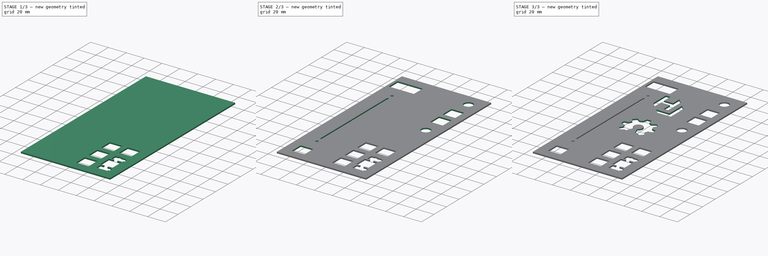
[diagram: build sequence overview — one tinted view per stage of 3, left to right]
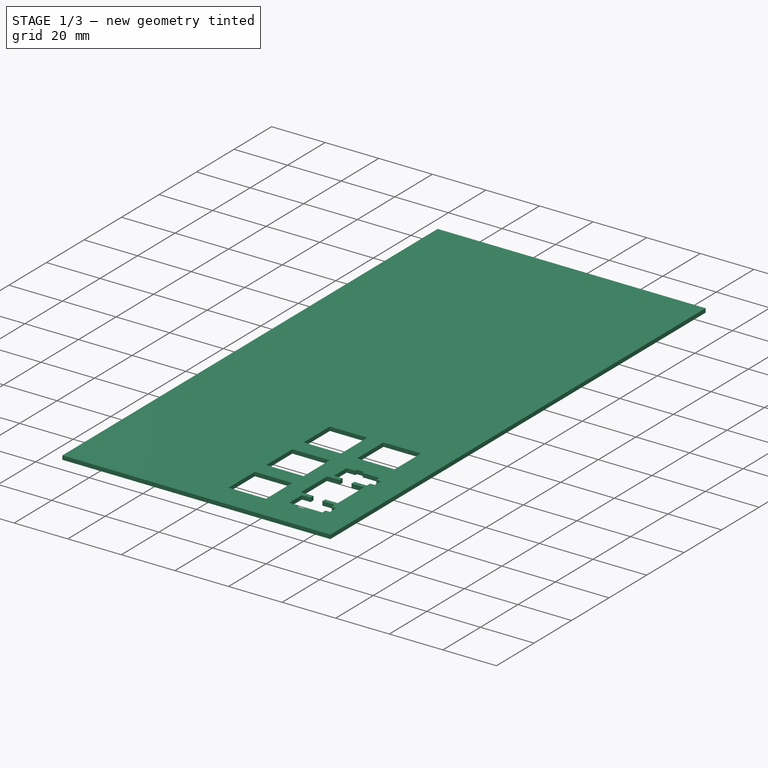
[diagram: stage 1 of 3 — iso view after this stage's code; geometry added in this stage tinted green]
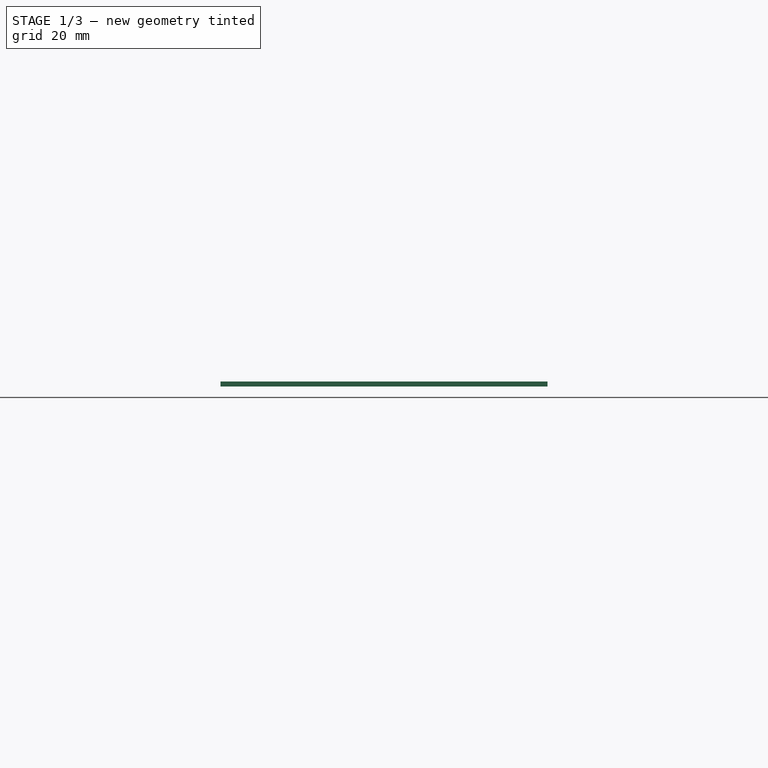
[diagram: stage 1 of 3 — front view after this stage's code; geometry added in this stage tinted green]
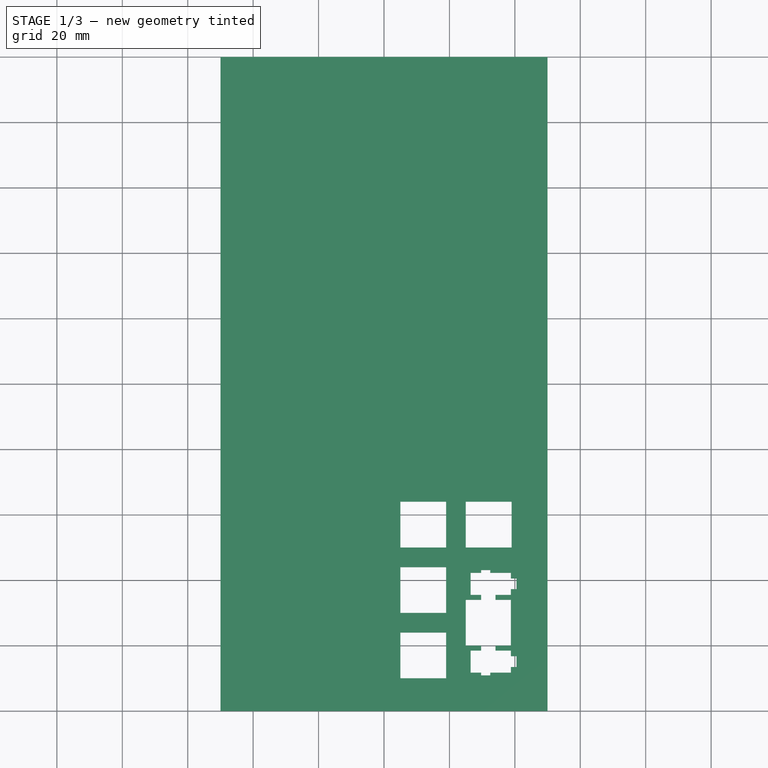
[diagram: stage 1 of 3 — top view after this stage's code; geometry added in this stage tinted green]
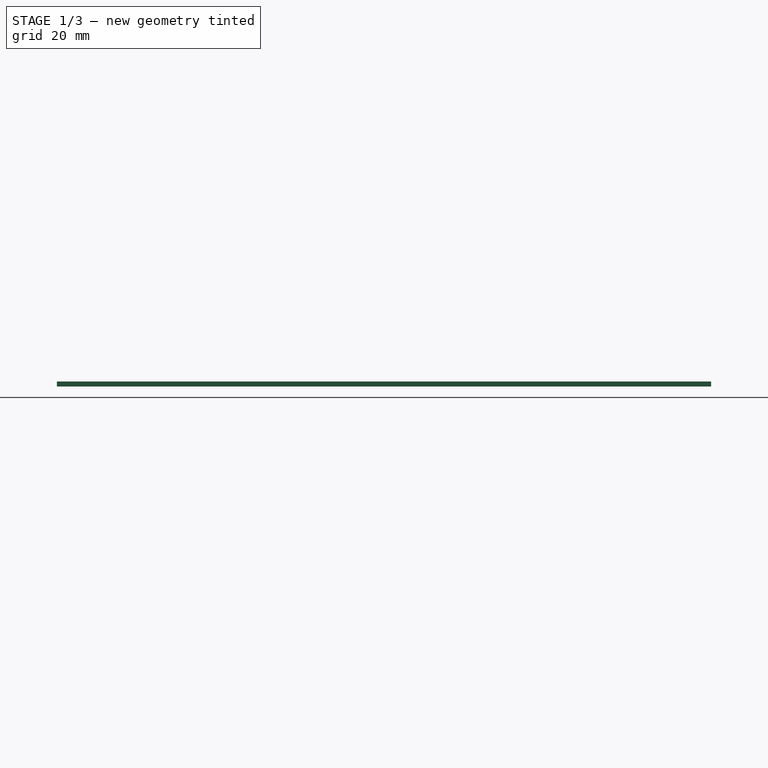
[diagram: stage 1 of 3 — right view after this stage's code; geometry added in this stage tinted green]
FCSTD DOCUMENT  (FreeCAD 0.21R33771 (Git))
Label: midi-test
License: All rights reserved
LicenseURL: http://en.wikipedia.org/wiki/All_rights_reserved
objects: Sketcher::SketchObject×6, PartDesign::Pocket×5, PartDesign::Pad×1, PartDesign::Body×1
note: 19 computed .brp shape members not serialized (recipe doc carries the construction recipe); baked Part::Feature solids carry a one-line shape summary decoded from their .brp

FEATURE [Sketcher::SketchObject] Sketch  label="base"
  FullyConstrained = true
  MapMode = 5
  Support = -> [XY_Plane]
  sketch-geometry (4):
    g0: LineSegment StartX=-50 StartY=100 StartZ=0 EndX=50 EndY=100 EndZ=0
    g1: LineSegment StartX=50 StartY=100 StartZ=0 EndX=50 EndY=-100 EndZ=0
    g2: LineSegment StartX=50 StartY=-100 StartZ=0 EndX=-50 EndY=-100 EndZ=0
    g3: LineSegment StartX=-50 StartY=-100 StartZ=0 EndX=-50 EndY=100 EndZ=0
  constraints (12):
    c: Coincident(g0,g1)
    c: Coincident(g1,g2)
    c: Coincident(g2,g3)
    c: Coincident(g3,g0)
    c: Horizontal(g0)
    c: Horizontal(g2)
    c: Vertical(g1)
    c: Vertical(g3)
    c: DistanceY(g3,g3) = 200
    c: DistanceX(g0,g0) = 100
    c: DistanceY(g-1,g0) = 100
    c: DistanceX(g0,g-1) = 50
FEATURE [PartDesign::Pad] Pad
  Direction = (0,0,1)
  Length = 1.5
  Length2 = 10
  Profile = -> Sketch
  ReferenceAxis = -> Sketch [N_Axis]
  Type = 0
FEATURE [Sketcher::SketchObject] Sketch004  label="keypad"
  ExternalGeometry = -> [Pad]
  FullyConstrained = true
  MapMode = 5
  Placement = pos=(0,0,1.5) rot=(0,0,1;0rad)
  Support = -> [Pad]
  sketch-geometry (52):
    g0: LineSegment StartX=25 StartY=-80 StartZ=0 EndX=25 EndY=-66 EndZ=0
    g1: LineSegment StartX=25 StartY=-66 StartZ=0 EndX=29.7 EndY=-66 EndZ=0
    g2: LineSegment StartX=29.7 StartY=-66 StartZ=0 EndX=29.7 EndY=-64.475 EndZ=0
    g3: LineSegment StartX=29.7 StartY=-64.475 StartZ=0 EndX=26.47 EndY=-64.475 EndZ=0
    g4: LineSegment StartX=26.47 StartY=-64.475 StartZ=0 EndX=26.47 EndY=-57.725 EndZ=0
    g5: LineSegment StartX=26.47 StartY=-57.725 StartZ=0 EndX=29.7 EndY=-57.725 EndZ=0
    g6: LineSegment StartX=29.7 StartY=-57.725 StartZ=0 EndX=29.7 EndY=-56.9 EndZ=0
    g7: LineSegment StartX=29.7 StartY=-56.9 StartZ=0 EndX=32.485 EndY=-56.9 EndZ=0
    g8: LineSegment StartX=32.485 StartY=-56.9 StartZ=0 EndX=32.485 EndY=-57.725 EndZ=0
    g9: LineSegment StartX=32.485 StartY=-57.725 StartZ=0 EndX=38.77 EndY=-57.725 EndZ=0
    g10: LineSegment StartX=38.77 StartY=-57.725 StartZ=0 EndX=38.77 EndY=-59.45 EndZ=0
    g11: LineSegment StartX=38.77 StartY=-59.45 StartZ=0 EndX=40.495 EndY=-59.45 EndZ=0
    g12: LineSegment StartX=40.495 StartY=-59.45 StartZ=0 EndX=40.495 EndY=-62.75 EndZ=0
    g13: LineSegment StartX=40.495 StartY=-62.75 StartZ=0 EndX=38.77 EndY=-62.75 EndZ=0
    g14: LineSegment StartX=38.77 StartY=-62.75 StartZ=0 EndX=38.77 EndY=-64.475 EndZ=0
    g15: LineSegment StartX=38.77 StartY=-64.475 StartZ=0 EndX=34.07 EndY=-64.475 EndZ=0
    g16: LineSegment StartX=34.07 StartY=-64.475 StartZ=0 EndX=34.07 EndY=-66 EndZ=0
    g17: LineSegment StartX=34.07 StartY=-66 StartZ=0 EndX=38.77 EndY=-66 EndZ=0
    g18: LineSegment StartX=38.77 StartY=-66 StartZ=0 EndX=38.77 EndY=-80 EndZ=0
    g19: LineSegment StartX=25 StartY=-80 StartZ=0 EndX=29.7 EndY=-80 EndZ=0
    g20: LineSegment StartX=29.7 StartY=-80 StartZ=0 EndX=29.7 EndY=-81.525 EndZ=0
    g21: LineSegment StartX=29.7 StartY=-81.525 StartZ=0 EndX=26.47 EndY=-81.525 EndZ=0
    g22: LineSegment StartX=26.47 StartY=-81.525 StartZ=0 EndX=26.47 EndY=-88.275 EndZ=0
    g23: LineSegment StartX=26.47 StartY=-88.275 StartZ=0 EndX=29.7 EndY=-88.275 EndZ=0
    g24: LineSegment StartX=29.7 StartY=-88.275 StartZ=0 EndX=29.7 EndY=-89.1 EndZ=0
    g25: LineSegment StartX=29.7 StartY=-89.1 StartZ=0 EndX=32.485 EndY=-89.1 EndZ=0
    g26: LineSegment StartX=32.485 StartY=-89.1 StartZ=0 EndX=32.485 EndY=-88.275 EndZ=0
    g27: LineSegment StartX=32.485 StartY=-88.275 StartZ=0 EndX=38.77 EndY=-88.275 EndZ=0
    g28: LineSegment StartX=38.77 StartY=-88.275 StartZ=0 EndX=38.77 EndY=-86.55 EndZ=0
    g29: LineSegment StartX=38.77 StartY=-86.55 StartZ=0 EndX=40.495 EndY=-86.55 EndZ=0
    g30: LineSegment StartX=40.495 StartY=-86.55 StartZ=0 EndX=40.495 EndY=-83.25 EndZ=0
    g31: LineSegment StartX=40.495 StartY=-83.25 StartZ=0 EndX=38.77 EndY=-83.25 EndZ=0
    g32: LineSegment StartX=38.77 StartY=-83.25 StartZ=0 EndX=38.77 EndY=-81.525 EndZ=0
    g33: LineSegment StartX=38.77 StartY=-81.525 StartZ=0 EndX=34.07 EndY=-81.525 EndZ=0
    g34: LineSegment StartX=34.07 StartY=-81.525 StartZ=0 EndX=34.07 EndY=-80 EndZ=0
    g35: LineSegment StartX=34.07 StartY=-80 StartZ=0 EndX=38.77 EndY=-80 EndZ=0
    g36: LineSegment StartX=19 StartY=-76 StartZ=0 EndX=5 EndY=-76 EndZ=0
    g37: LineSegment StartX=5 StartY=-76 StartZ=0 EndX=5 EndY=-90 EndZ=0
    g38: LineSegment StartX=5 StartY=-90 StartZ=0 EndX=19 EndY=-90 EndZ=0
    g39: LineSegment StartX=19 StartY=-90 StartZ=0 EndX=19 EndY=-76 EndZ=0
    g40: LineSegment StartX=19 StartY=-56 StartZ=0 EndX=5 EndY=-56 EndZ=0
    g41: LineSegment StartX=5 StartY=-56 StartZ=0 EndX=5 EndY=-70 EndZ=0
    g42: LineSegment StartX=5 StartY=-70 StartZ=0 EndX=19 EndY=-70 EndZ=0
    g43: LineSegment StartX=19 StartY=-70 StartZ=0 EndX=19 EndY=-56 EndZ=0
    g44: LineSegment StartX=19 StartY=-36 StartZ=0 EndX=5 EndY=-36 EndZ=0
    g45: LineSegment StartX=5 StartY=-36 StartZ=0 EndX=5 EndY=-50 EndZ=0
    g46: LineSegment StartX=5 StartY=-50 StartZ=0 EndX=19 EndY=-50 EndZ=0
    g47: LineSegment StartX=19 StartY=-50 StartZ=0 EndX=19 EndY=-36 EndZ=0
    g48: LineSegment StartX=39 StartY=-36 StartZ=0 EndX=25 EndY=-36 EndZ=0
    g49: LineSegment StartX=25 StartY=-36 StartZ=0 EndX=25 EndY=-50 EndZ=0
    g50: LineSegment StartX=25 StartY=-50 StartZ=0 EndX=39 EndY=-50 EndZ=0
    g51: LineSegment StartX=39 StartY=-50 StartZ=0 EndX=39 EndY=-36 EndZ=0
  constraints (156):
    c: Vertical(g0)
    c: DistanceY(g0,g0) = 14
    c: Coincident(g1,g0)
    c: Horizontal(g1)
    c: Coincident(g2,g1)
    c: Vertical(g2)
    c: Coincident(g3,g2)
    c: Horizontal(g3)
    c: Coincident(g4,g3)
    c: Vertical(g4)
    c: Coincident(g5,g4)
    c: Horizontal(g5)
    c: Coincident(g6,g5)
    c: Vertical(g6)
    c: Coincident(g7,g6)
    c: Coincident(g8,g7)
    c: Vertical(g8)
    c: Coincident(g9,g8)
    c: Horizontal(g9)
    c: Coincident(g10,g9)
    c: Coincident(g11,g10)
    c: Coincident(g12,g11)
    c: Coincident(g13,g12)
    c: Coincident(g14,g13)
    c: Vertical(g14)
    c: Coincident(g15,g14)
    c: Horizontal(g15)
    c: Coincident(g16,g15)
    c: Vertical(g16)
    c: Coincident(g17,g16)
    c: Horizontal(g17)
    c: Coincident(g18,g17)
    c: Vertical(g18)
    c: Equal(g5,g3)
    c: Equal(g6,g8)
    c: Equal(g14,g10)
    c: Equal(g11,g13)
    c: Parallel(g11,g13)
    c: Perpendicular(g7,g6)
    c: Perpendicular(g10,g11)
    c: Parallel(g12,g10)
    c: Parallel(g14,g10)
    c: Equal(g16,g2)
    c: Equal(g1,g17)
    c: DistanceY(g4,g4) = 6.75
    c: DistanceX(g1,g1) = 4.7
    c: DistanceY(g2,g2) = 1.525
    c: DistanceX(g3,g3) = 3.23
    c: DistanceY(g6,g6) = 0.825
    c: DistanceX(g7,g7) = 2.785
    c: DistanceX(g9,g9) = 6.285
    c: DistanceY(g10,g10) = 1.725
    c: DistanceX(g11,g11) = 1.725
    c: DistanceY(g12,g12) = 3.3
    c: Equal(g15,g17)
    c: Equal(g18,g0)
    c: Coincident(g19,g0)
    c: Horizontal(g19)
    c: Coincident(g20,g19)
    c: Vertical(g20)
    c: Coincident(g21,g20)
    c: Horizontal(g21)
    c: Coincident(g22,g21)
    c: Vertical(g22)
    c: Coincident(g23,g22)
    c: Horizontal(g23)
    c: Coincident(g24,g23)
    c: Coincident(g25,g24)
    c: Horizontal(g25)
    c: Coincident(g26,g25)
    c: Coincident(g27,g26)
    c: Horizontal(g27)
    c: Coincident(g28,g27)
    c: Vertical(g28)
    c: Coincident(g29,g28)
    c: Coincident(g30,g29)
    c: Coincident(g31,g30)
    c: Coincident(g32,g31)
    c: Coincident(g33,g32)
    c: Horizontal(g33)
    c: Coincident(g34,g33)
    c: Vertical(g34)
    c: Coincident(g35,g34)
    c: Coincident(g35,g18)
    c: Equal(g1,g19)
    c: Equal(g35,g17)
    c: Equal(g34,g20)
    c: Equal(g20,g2)
    c: Perpendicular(g18,g35)
    c: Equal(g21,g3)
    c: Equal(g33,g15)
    c: Equal(g32,g14)
    c: Equal(g31,g13)
    c: Equal(g12,g30)
    c: Equal(g11,g29)
    c: Equal(g28,g10)
    c: Equal(g9,g27)
    c: Equal(g22,g4)
    c: Equal(g23,g5)
    c: Equal(g26,g24)
    c: Equal(g24,g6)
    c: Perpendicular(g33,g32)
    c: Parallel(g29,g31)
    c: Perpendicular(g32,g31)
    c: Perpendicular(g31,g30)
    c: Perpendicular(g26,g27)
    c: Coincident(g36,g37)
    c: Coincident(g37,g38)
    c: Coincident(g38,g39)
    c: Coincident(g39,g36)
    c: Horizontal(g36)
    c: Horizontal(g38)
    c: Vertical(g37)
    c: Vertical(g39)
    c: DistanceY(g37,g37) = 14
    c: DistanceX(g36,g36) = 14
    c: Coincident(g40,g41)
    c: Coincident(g41,g42)
    c: Coincident(g42,g43)
    c: Coincident(g43,g40)
    c: Horizontal(g40)
    c: Horizontal(g42)
    c: Vertical(g41)
    c: Vertical(g43)
    c: Equal(g37,g41) = 14
    c: Equal(g36,g40) = 14
    c: Coincident(g44,g45)
    c: Coincident(g45,g46)
    c: Coincident(g46,g47)
    c: Coincident(g47,g44)
    c: Horizontal(g44)
    c: Horizontal(g46)
    c: Vertical(g45)
    c: Vertical(g47)
    c: Equal(g37,g45) = 14
    c: Equal(g36,g44) = 14
    c: Coincident(g48,g49)
    c: Coincident(g49,g50)
    c: Coincident(g50,g51)
    c: Coincident(g51,g48)
    c: Horizontal(g48)
    c: Horizontal(g50)
    c: Vertical(g49)
    c: Vertical(g51)
    c: Equal(g37,g49) = 14
    c: Equal(g36,g48) = 14
    c: DistanceY(g36,g41) = 6
    c: DistanceY(g40,g45) = 6
    c: DistanceY(g46,g49) = 0
    c: DistanceX(g44,g48) = 6
    c: DistanceX(g40,g45) = 0
    c: DistanceX(g36,g41) = 0
    c: DistanceX(g49,g0) = 0
    c: DistanceY(g42,g0) = 4
    c: DistanceY(g-6,g38) = 10
    c: DistanceX(g38,g-6) = 31
FEATURE [Sketcher::SketchObject] Sketch001  label="faderwing0"
  ExternalGeometry = -> [Pad]
  FullyConstrained = true
  MapMode = 5
  Placement = pos=(0,0,1.5) rot=(0,0,1;0rad)
  Support = -> [Pad]
  sketch-geometry (14):
    g0: LineSegment StartX=-47 StartY=89 StartZ=0 EndX=-19 EndY=89 EndZ=0
    g1: LineSegment StartX=-19 StartY=89 StartZ=0 EndX=-19 EndY=75 EndZ=0
    g2: LineSegment StartX=-19 StartY=75 StartZ=0 EndX=-47 EndY=75 EndZ=0
    g3: LineSegment StartX=-47 StartY=75 StartZ=0 EndX=-47 EndY=89 EndZ=0
    g4: Circle CenterX=-33 CenterY=60 CenterZ=0 NormalX=0 NormalY=0 NormalZ=1 AngleXU=0 Radius=1.5
    g5: LineSegment StartX=-34 StartY=54 StartZ=0 EndX=-32 EndY=54 EndZ=0
    g6: LineSegment StartX=-32 StartY=54 StartZ=0 EndX=-32 EndY=-54 EndZ=0
    g7: LineSegment StartX=-32 StartY=-54 StartZ=0 EndX=-34 EndY=-54 EndZ=0
    g8: LineSegment StartX=-34 StartY=-54 StartZ=0 EndX=-34 EndY=54 EndZ=0
    g9: Circle CenterX=-33 CenterY=-60 CenterZ=0 NormalX=0 NormalY=0 NormalZ=1 AngleXU=0 Radius=1.5
    g10: LineSegment StartX=-40 StartY=-76 StartZ=0 EndX=-26 EndY=-76 EndZ=0
    g11: LineSegment StartX=-26 StartY=-76 StartZ=0 EndX=-26 EndY=-90 EndZ=0
    g12: LineSegment StartX=-26 StartY=-90 StartZ=0 EndX=-40 EndY=-90 EndZ=0
    g13: LineSegment StartX=-40 StartY=-90 StartZ=0 EndX=-40 EndY=-76 EndZ=0
  constraints (42):
    c: Coincident(g0,g1)
    c: Coincident(g1,g2)
    c: Coincident(g2,g3)
    c: Coincident(g3,g0)
    c: Horizontal(g0)
    c: Horizontal(g2)
    c: Vertical(g1)
    c: Vertical(g3)
    c: DistanceY(g3,g3) = 14
    c: DistanceX(g0,g0) = 28
    c: Coincident(g5,g6)
    c: Coincident(g6,g7)
    c: Coincident(g7,g8)
    c: Coincident(g8,g5)
    c: Horizontal(g5)
    c: Horizontal(g7)
    c: Vertical(g6)
    c: Vertical(g8)
    c: Diameter(g4) = 3
    c: DistanceY(g8,g8) = 108
    c: DistanceX(g5,g5) = 2
    c: DistanceX(g5,g4) = 1
    c: DistanceY(g5,g4) = 6
    c: DistanceX(g2,g4) = 14
    c: DistanceY(g4,g2) = 15
    c: Equal(g4,g9) = 3
    c: DistanceY(g9,g7) = 6
    c: DistanceX(g7,g9) = 1
    c: Coincident(g10,g11)
    c: Coincident(g11,g12)
    c: Coincident(g12,g13)
    c: Coincident(g13,g10)
    c: Horizontal(g10)
    c: Horizontal(g12)
    c: Vertical(g11)
    c: Vertical(g13)
    c: DistanceX(g10,g9) = 7
    c: DistanceY(g10,g9) = 16
    c: DistanceY(g-3,g12) = 10
    c: DistanceX(g-3,g12) = 10
    c: DistanceY(g13,g13) = 14
    c: DistanceX(g10,g10) = 14
FEATURE [Sketcher::SketchObject] Sketch005  label="endcoders"
  ExternalGeometry = -> [Pad]
  FullyConstrained = true
  MapMode = 5
  Placement = pos=(0,0,1.5) rot=(0,0,1;0rad)
  Support = -> [Pad]
  sketch-geometry (10):
    g0: Circle CenterX=35 CenterY=85 CenterZ=0 NormalX=0 NormalY=0 NormalZ=1 AngleXU=0 Radius=5
    g1: LineSegment StartX=28 StartY=68 StartZ=0 EndX=42 EndY=68 EndZ=0
    g2: LineSegment StartX=42 StartY=68 StartZ=0 EndX=42 EndY=54 EndZ=0
    g3: LineSegment StartX=42 StartY=54 StartZ=0 EndX=28 EndY=54 EndZ=0
    g4: LineSegment StartX=28 StartY=54 StartZ=0 EndX=28 EndY=68 EndZ=0
    g5: LineSegment StartX=28 StartY=48 StartZ=0 EndX=42 EndY=48 EndZ=0
    g6: LineSegment StartX=42 StartY=48 StartZ=0 EndX=42 EndY=34 EndZ=0
    g7: LineSegment StartX=42 StartY=34 StartZ=0 EndX=28 EndY=34 EndZ=0
    g8: LineSegment StartX=28 StartY=34 StartZ=0 EndX=28 EndY=48 EndZ=0
    g9: Circle CenterX=35 CenterY=17 CenterZ=0 NormalX=0 NormalY=0 NormalZ=1 AngleXU=0 Radius=5
  constraints (30):
    c: Coincident(g1,g2)
    c: Coincident(g2,g3)
    c: Coincident(g3,g4)
    c: Coincident(g4,g1)
    c: Horizontal(g1)
    c: Horizontal(g3)
    c: Vertical(g2)
    c: Vertical(g4)
    c: Diameter(g0) = 10
    c: DistanceY(g4,g4) = 14
    c: DistanceX(g1,g1) = 14
    c: DistanceX(g1,g0) = 7
    c: DistanceY(g1,g0) = 17
    c: Coincident(g5,g6)
    c: Coincident(g6,g7)
    c: Coincident(g7,g8)
    c: Coincident(g8,g5)
    c: Horizontal(g5)
    c: Horizontal(g7)
    c: Vertical(g6)
    c: Vertical(g8)
    c: Equal(g4,g8) = 14
    c: Equal(g1,g5) = 14
    c: DistanceY(g5,g3) = 6
    c: DistanceX(g3,g5) = 0
    c: Equal(g0,g9) = 10
    c: DistanceX(g7,g9) = 7
    c: DistanceY(g9,g7) = 17
    c: DistanceX(g0,g-4) = 15
    c: DistanceY(g0,g-4) = 15
FEATURE [PartDesign::Pocket] Pocket
  BaseFeature = -> Pad
  Direction = (0,0,-1)
  Length = 1.5
  Length2 = 5
  Profile = -> Sketch004
  ReferenceAxis = -> Sketch004 [N_Axis]
  Type = 0
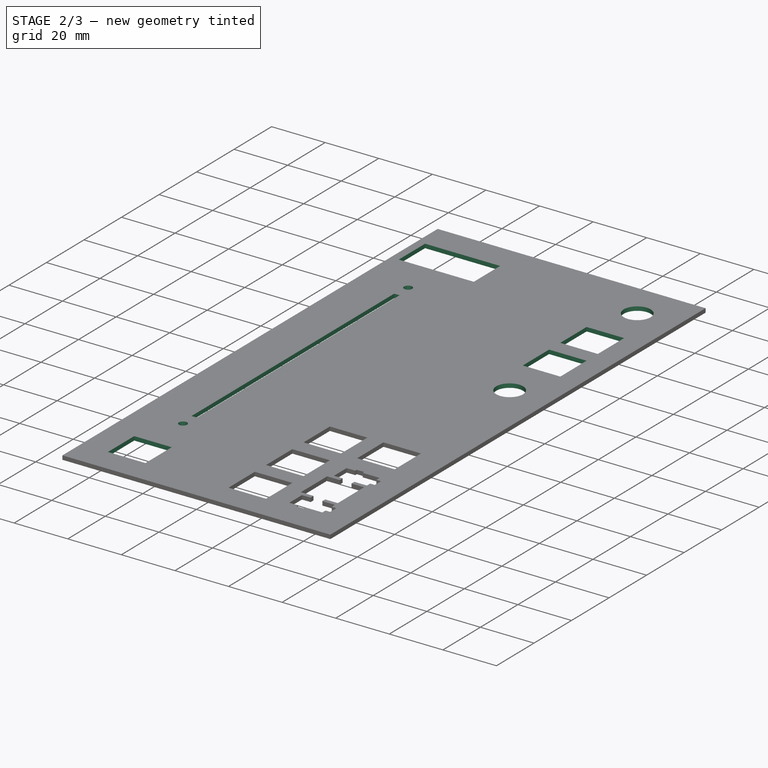
[diagram: stage 2 of 3 — iso view after this stage's code; geometry added in this stage tinted green]
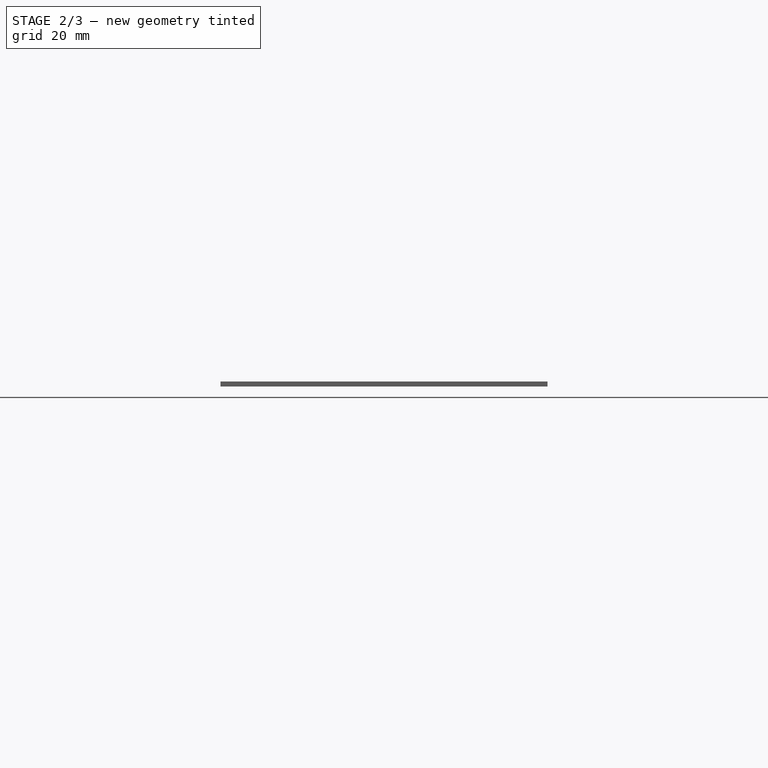
[diagram: stage 2 of 3 — front view after this stage's code; geometry added in this stage tinted green]
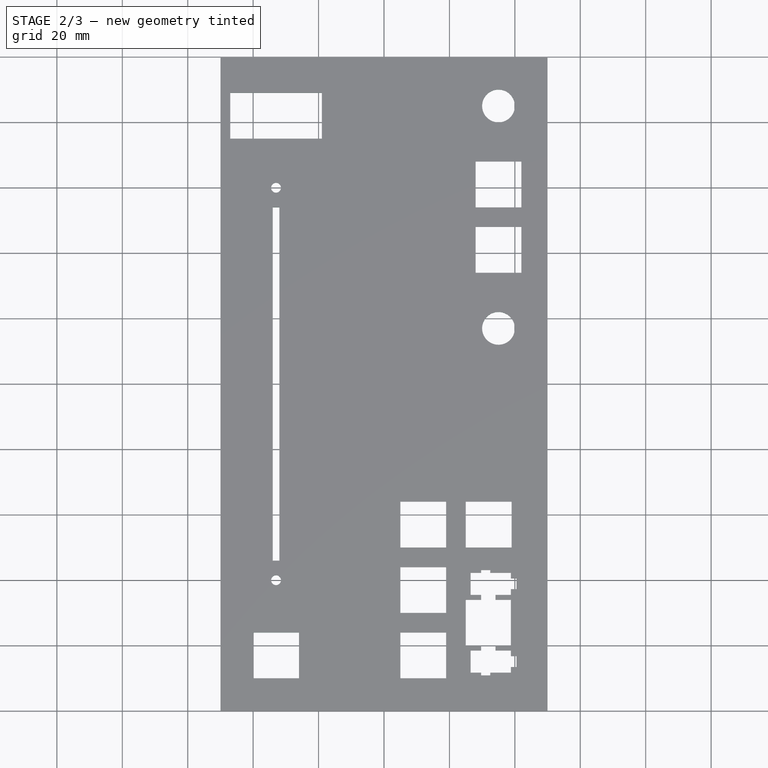
[diagram: stage 2 of 3 — top view after this stage's code; geometry added in this stage tinted green]
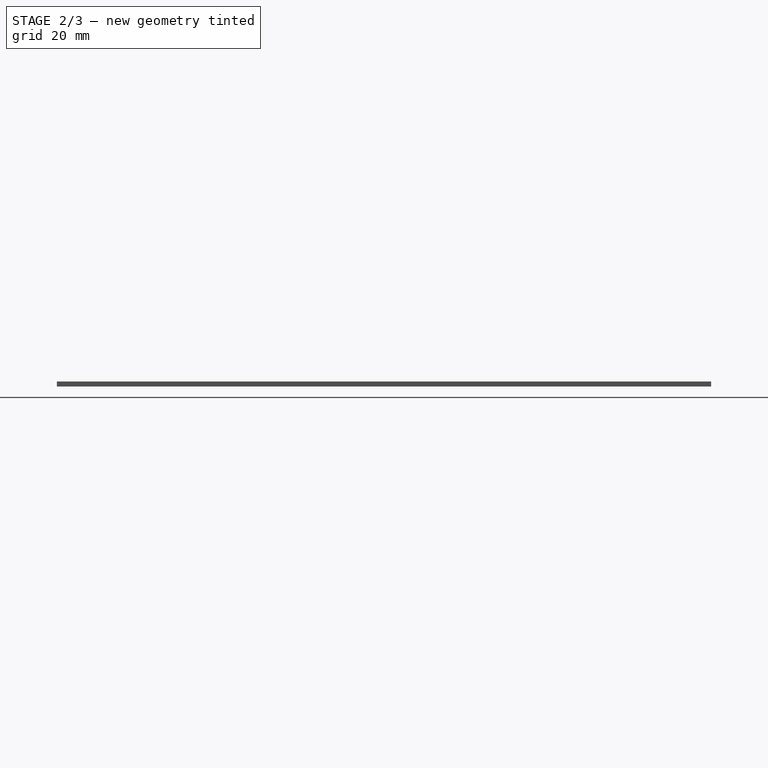
[diagram: stage 2 of 3 — right view after this stage's code; geometry added in this stage tinted green]
FEATURE [PartDesign::Pocket] Pocket001
  BaseFeature = -> Pocket
  Direction = (0,0,-1)
  Length = 1.5
  Length2 = 5
  Profile = -> Sketch001
  ReferenceAxis = -> Sketch001 [N_Axis]
  Type = 0
FEATURE [PartDesign::Pocket] Pocket002
  BaseFeature = -> Pocket001
  Direction = (0,0,-1)
  Length = 1.5
  Length2 = 5
  Profile = -> Sketch005
  ReferenceAxis = -> Sketch005 [N_Axis]
  Type = 0
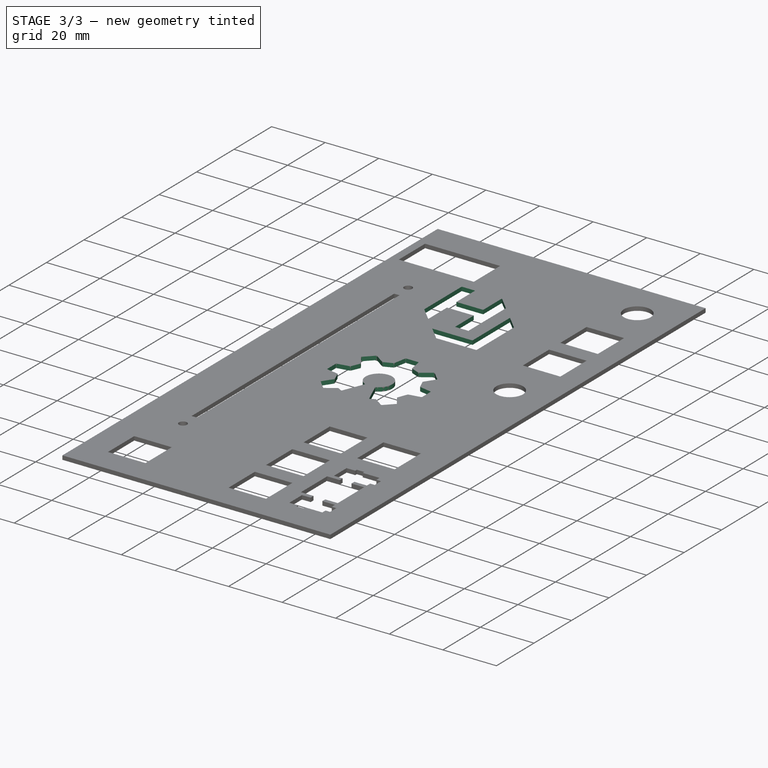
[diagram: stage 3 of 3 — iso view after this stage's code; geometry added in this stage tinted green]
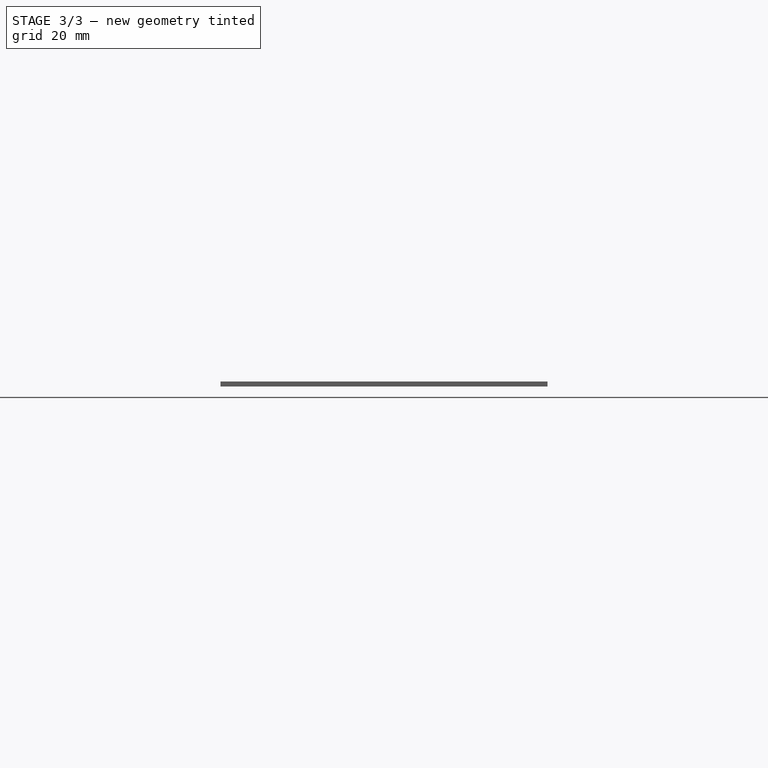
[diagram: stage 3 of 3 — front view after this stage's code; geometry added in this stage tinted green]
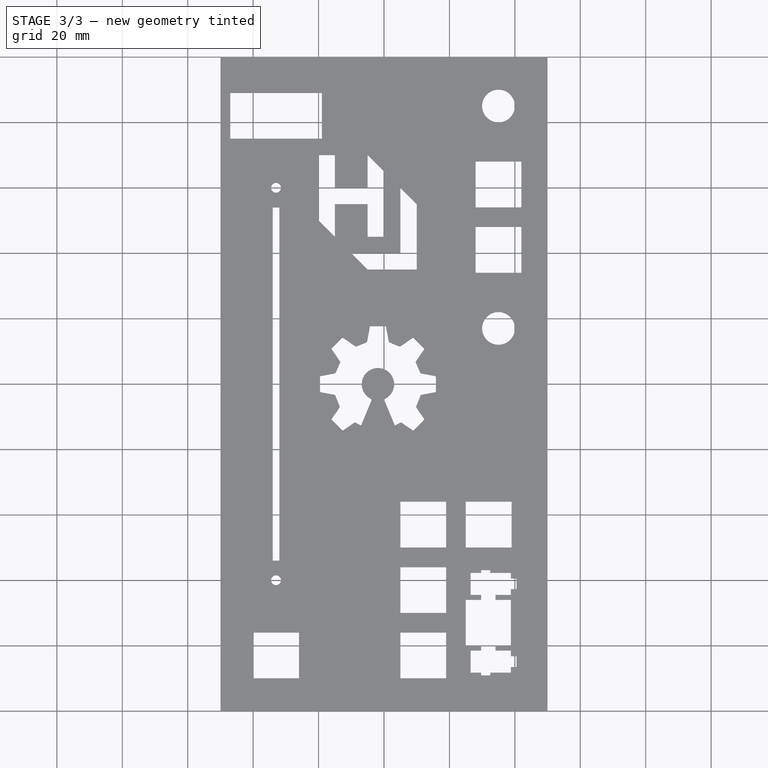
[diagram: stage 3 of 3 — top view after this stage's code; geometry added in this stage tinted green]
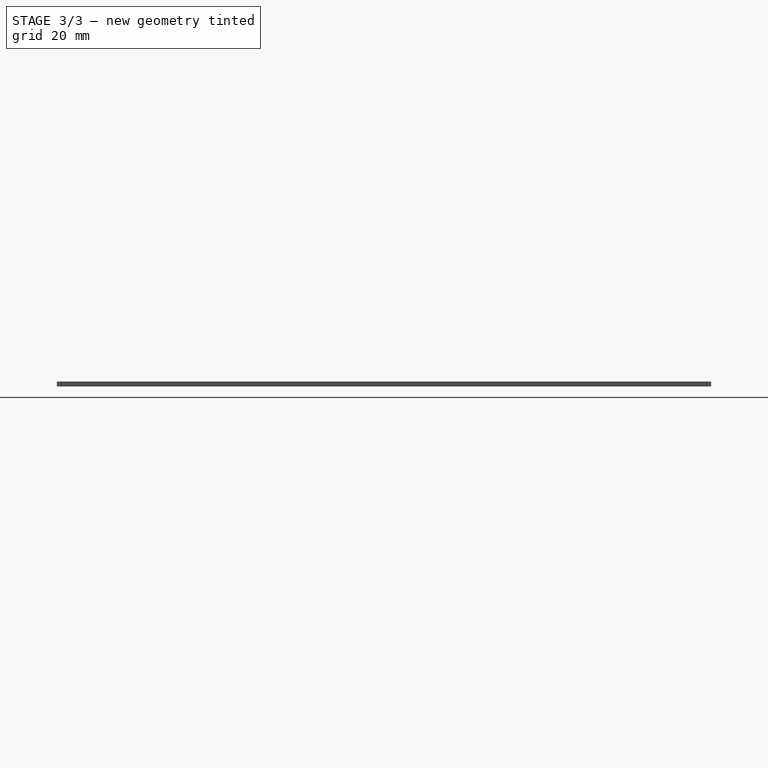
[diagram: stage 3 of 3 — right view after this stage's code; geometry added in this stage tinted green]
FEATURE [Sketcher::SketchObject] Sketch006  label="openhwlogo"
  FullyConstrained = false
  MapMode = 5
  Placement = pos=(0,0,1.5) rot=(0,0,1;0rad)
  Support = -> [Pocket002]
  sketch-geometry (71):
    g0: BSplineCurve PolesCount=2 KnotsCount=2 Degree=1 IsPeriodic=0
    g1: BSplineCurve PolesCount=4 KnotsCount=2 Degree=3 IsPeriodic=0
    g2: BSplineCurve PolesCount=2 KnotsCount=2 Degree=1 IsPeriodic=0
    g3: BSplineCurve PolesCount=4 KnotsCount=2 Degree=3 IsPeriodic=0
    g4: BSplineCurve PolesCount=2 KnotsCount=2 Degree=1 IsPeriodic=0
    g5: BSplineCurve PolesCount=4 KnotsCount=2 Degree=3 IsPeriodic=0
    g6: BSplineCurve PolesCount=2 KnotsCount=2 Degree=1 IsPeriodic=0
    g7: BSplineCurve PolesCount=4 KnotsCount=2 Degree=3 IsPeriodic=0
    g8: BSplineCurve PolesCount=2 KnotsCount=2 Degree=1 IsPeriodic=0
    g9: BSplineCurve PolesCount=4 KnotsCount=2 Degree=3 IsPeriodic=0
    g10: BSplineCurve PolesCount=2 KnotsCount=2 Degree=1 IsPeriodic=0
    g11: BSplineCurve PolesCount=4 KnotsCount=2 Degree=3 IsPeriodic=0
    g12: BSplineCurve PolesCount=2 KnotsCount=2 Degree=1 IsPeriodic=0
    g13: BSplineCurve PolesCount=4 KnotsCount=2 Degree=3 IsPeriodic=0
    g14: BSplineCurve PolesCount=2 KnotsCount=2 Degree=1 IsPeriodic=0
    g15: BSplineCurve PolesCount=4 KnotsCount=2 Degree=3 IsPeriodic=0
    g16: BSplineCurve PolesCount=2 KnotsCount=2 Degree=1 IsPeriodic=0
    g17: BSplineCurve PolesCount=4 KnotsCount=2 Degree=3 IsPeriodic=0
    g18: BSplineCurve PolesCount=2 KnotsCount=2 Degree=1 IsPeriodic=0
    g19: BSplineCurve PolesCount=4 KnotsCount=2 Degree=3 IsPeriodic=0
    g20: BSplineCurve PolesCount=2 KnotsCount=2 Degree=1 IsPeriodic=0
    g21: BSplineCurve PolesCount=4 KnotsCount=2 Degree=3 IsPeriodic=0
    g22: BSplineCurve PolesCount=2 KnotsCount=2 Degree=1 IsPeriodic=0
    g23: BSplineCurve PolesCount=4 KnotsCount=2 Degree=3 IsPeriodic=0
    g24: BSplineCurve PolesCount=2 KnotsCount=2 Degree=1 IsPeriodic=0
    g25: BSplineCurve PolesCount=4 KnotsCount=2 Degree=3 IsPeriodic=0
    g26: BSplineCurve PolesCount=2 KnotsCount=2 Degree=1 IsPeriodic=0
    g27: BSplineCurve PolesCount=4 KnotsCount=2 Degree=3 IsPeriodic=0
    g28: BSplineCurve PolesCount=2 KnotsCount=2 Degree=1 IsPeriodic=0
    g29: BSplineCurve PolesCount=4 KnotsCount=2 Degree=3 IsPeriodic=0
    g30: BSplineCurve PolesCount=2 KnotsCount=2 Degree=1 IsPeriodic=0
    g31: BSplineCurve PolesCount=4 KnotsCount=2 Degree=3 IsPeriodic=0
    g32: BSplineCurve PolesCount=2 KnotsCount=2 Degree=1 IsPeriodic=0
    g33: BSplineCurve PolesCount=4 KnotsCount=2 Degree=3 IsPeriodic=0
    g34: BSplineCurve PolesCount=2 KnotsCount=2 Degree=1 IsPeriodic=0
    g35: BSplineCurve PolesCount=4 KnotsCount=2 Degree=3 IsPeriodic=0
    g36: BSplineCurve PolesCount=2 KnotsCount=2 Degree=1 IsPeriodic=0
    g37: BSplineCurve PolesCount=4 KnotsCount=2 Degree=3 IsPeriodic=0
    g38: BSplineCurve PolesCount=2 KnotsCount=2 Degree=1 IsPeriodic=0
    g39: BSplineCurve PolesCount=4 KnotsCount=2 Degree=3 IsPeriodic=0
    g40: BSplineCurve PolesCount=2 KnotsCount=2 Degree=1 IsPeriodic=0
    g41: BSplineCurve PolesCount=4 KnotsCount=2 Degree=3 IsPeriodic=0
    g42: BSplineCurve PolesCount=2 KnotsCount=2 Degree=1 IsPeriodic=0
    g43: BSplineCurve PolesCount=4 KnotsCount=2 Degree=3 IsPeriodic=0
    g44: BSplineCurve PolesCount=2 KnotsCount=2 Degree=1 IsPeriodic=0
    g45: BSplineCurve PolesCount=4 KnotsCount=2 Degree=3 IsPeriodic=0
    g46: BSplineCurve PolesCount=2 KnotsCount=2 Degree=1 IsPeriodic=0
    g47: BSplineCurve PolesCount=4 KnotsCount=2 Degree=3 IsPeriodic=0
    g48: BSplineCurve PolesCount=4 KnotsCount=2 Degree=3 IsPeriodic=0
    g49: BSplineCurve PolesCount=4 KnotsCount=2 Degree=3 IsPeriodic=0
    g50: BSplineCurve PolesCount=4 KnotsCount=2 Degree=3 IsPeriodic=0
    g51: BSplineCurve PolesCount=4 KnotsCount=2 Degree=3 IsPeriodic=0
    g52: BSplineCurve PolesCount=4 KnotsCount=2 Degree=3 IsPeriodic=0
    g53: BSplineCurve PolesCount=2 KnotsCount=2 Degree=1 IsPeriodic=0
    g54: BSplineCurve PolesCount=4 KnotsCount=2 Degree=3 IsPeriodic=0
    g55: BSplineCurve PolesCount=2 KnotsCount=2 Degree=1 IsPeriodic=0
    g56: BSplineCurve PolesCount=4 KnotsCount=2 Degree=3 IsPeriodic=0
    g57: BSplineCurve PolesCount=2 KnotsCount=2 Degree=1 IsPeriodic=0
    g58: BSplineCurve PolesCount=4 KnotsCount=2 Degree=3 IsPeriodic=0
    g59: BSplineCurve PolesCount=2 KnotsCount=2 Degree=1 IsPeriodic=0
    g60: BSplineCurve PolesCount=4 KnotsCount=2 Degree=3 IsPeriodic=0
    g61: BSplineCurve PolesCount=2 KnotsCount=2 Degree=1 IsPeriodic=0
    g62: BSplineCurve PolesCount=4 KnotsCount=2 Degree=3 IsPeriodic=0
    g63: BSplineCurve PolesCount=2 KnotsCount=2 Degree=1 IsPeriodic=0
    g64: BSplineCurve PolesCount=4 KnotsCount=2 Degree=3 IsPeriodic=0
    g65: BSplineCurve PolesCount=2 KnotsCount=2 Degree=1 IsPeriodic=0
    g66: BSplineCurve PolesCount=4 KnotsCount=2 Degree=3 IsPeriodic=0
    g67: BSplineCurve PolesCount=2 KnotsCount=2 Degree=1 IsPeriodic=0
    g68: BSplineCurve PolesCount=4 KnotsCount=2 Degree=3 IsPeriodic=0
    g69: BSplineCurve PolesCount=2 KnotsCount=2 Degree=1 IsPeriodic=0
    g70: BSplineCurve PolesCount=4 KnotsCount=2 Degree=3 IsPeriodic=0
  constraints (71):
    c: Coincident(g0,g1)
    c: Coincident(g1,g2)
    c: Coincident(g2,g3)
    c: Coincident(g3,g4)
    c: Coincident(g4,g5)
    c: Coincident(g5,g6)
    c: Coincident(g6,g7)
    c: Coincident(g7,g8)
    c: Coincident(g8,g9)
    c: Coincident(g9,g10)
    c: Coincident(g10,g11)
    c: Coincident(g11,g12)
    c: Coincident(g12,g13)
    c: Coincident(g13,g14)
    c: Coincident(g14,g15)
    c: Coincident(g15,g16)
    c: Coincident(g16,g17)
    c: Coincident(g17,g18)
    c: Coincident(g18,g19)
    c: Coincident(g19,g20)
    c: Coincident(g20,g21)
    c: Coincident(g21,g22)
    c: Coincident(g22,g23)
    c: Coincident(g23,g24)
    c: Coincident(g24,g25)
    c: Coincident(g25,g26)
    c: Coincident(g26,g27)
    c: Coincident(g27,g28)
    c: Coincident(g28,g29)
    c: Coincident(g29,g30)
    c: Coincident(g30,g31)
    c: Coincident(g31,g32)
    c: Coincident(g32,g33)
    c: Coincident(g33,g34)
    c: Coincident(g34,g35)
    c: Coincident(g35,g36)
    c: Coincident(g36,g37)
    c: Coincident(g37,g38)
    c: Coincident(g38,g39)
    c: Coincident(g39,g40)
    c: Coincident(g40,g41)
    c: Coincident(g41,g42)
    c: Coincident(g42,g43)
    c: Coincident(g43,g44)
    c: Coincident(g44,g45)
    c: Coincident(g45,g46)
    c: Coincident(g46,g47)
    c: Coincident(g47,g48)
    c: Coincident(g48,g49)
    c: Coincident(g49,g50)
    c: Coincident(g50,g51)
    c: Coincident(g51,g52)
    c: Coincident(g52,g53)
    c: Coincident(g53,g54)
    c: Coincident(g54,g55)
    c: Coincident(g55,g56)
    c: Coincident(g56,g57)
    c: Coincident(g57,g58)
    c: Coincident(g58,g59)
    c: Coincident(g59,g60)
    c: Coincident(g60,g61)
    c: Coincident(g61,g62)
    c: Coincident(g62,g63)
    c: Coincident(g63,g64)
    c: Coincident(g64,g65)
    c: Coincident(g65,g66)
    c: Coincident(g66,g67)
    c: Coincident(g67,g68)
    c: Coincident(g68,g69)
    c: Coincident(g69,g70)
    c: Coincident(g70,g0)
FEATURE [PartDesign::Pocket] Pocket003
  BaseFeature = -> Pocket002
  Direction = (0,0,-1)
  Length = 1.5
  Length2 = 5
  Profile = -> Sketch006
  ReferenceAxis = -> Sketch006 [N_Axis]
  Type = 0
FEATURE [Sketcher::SketchObject] Sketch007
  ExternalGeometry = -> [Pocket003]
  FullyConstrained = true
  MapMode = 5
  Placement = pos=(0,0,1.5) rot=(0,0,1;0rad)
  Support = -> [Pocket003]
  sketch-geometry (18):
    g0: LineSegment StartX=-20 StartY=70 StartZ=0 EndX=-15 EndY=70 EndZ=0
    g1: LineSegment StartX=-15 StartY=70 StartZ=0 EndX=-15 EndY=60 EndZ=0
    g2: LineSegment StartX=-15 StartY=60 StartZ=0 EndX=-5 EndY=60 EndZ=0
    g3: LineSegment StartX=-5 StartY=60 StartZ=0 EndX=-5 EndY=70 EndZ=0
    g4: LineSegment StartX=-5 StartY=70 StartZ=0 EndX=0 EndY=65 EndZ=0
    g5: LineSegment StartX=3e-16 StartY=65 StartZ=0 EndX=3e-16 EndY=45 EndZ=0
    g6: LineSegment StartX=3e-16 StartY=45 StartZ=0 EndX=-5 EndY=45 EndZ=0
    g7: LineSegment StartX=-5 StartY=45 StartZ=0 EndX=-5 EndY=55 EndZ=0
    g8: LineSegment StartX=-5 StartY=55 StartZ=0 EndX=-15 EndY=55 EndZ=0
    g9: LineSegment StartX=-15 StartY=55 StartZ=0 EndX=-15 EndY=45 EndZ=0
    g10: LineSegment StartX=-15 StartY=45 StartZ=0 EndX=-20 EndY=50 EndZ=0
    g11: LineSegment StartX=-20 StartY=50 StartZ=0 EndX=-20 EndY=70 EndZ=0
    g12: LineSegment StartX=-10 StartY=40 StartZ=0 EndX=-5 EndY=35 EndZ=0
    g13: LineSegment StartX=-5 StartY=35 StartZ=0 EndX=10 EndY=35 EndZ=0
    g14: LineSegment StartX=10 StartY=35 StartZ=0 EndX=10 EndY=55 EndZ=0
    g15: LineSegment StartX=10 StartY=55 StartZ=0 EndX=5 EndY=60 EndZ=0
    g16: LineSegment StartX=5 StartY=60 StartZ=0 EndX=5 EndY=40 EndZ=0
    g17: LineSegment StartX=5 StartY=40 StartZ=0 EndX=-10 EndY=40 EndZ=0
  constraints (54):
    c: Horizontal(g0)
    c: Coincident(g1,g0)
    c: Vertical(g1)
    c: Coincident(g2,g1)
    c: Horizontal(g2)
    c: Coincident(g3,g2)
    c: Coincident(g4,g3)
    c: Coincident(g5,g4)
    c: Vertical(g5)
    c: Coincident(g6,g5)
    c: Horizontal(g6)
    c: Coincident(g7,g6)
    c: Vertical(g7)
    c: Coincident(g8,g7)
    c: Coincident(g9,g8)
    c: Vertical(g9)
    c: Coincident(g10,g9)
    c: Coincident(g11,g10)
    c: Coincident(g11,g0)
    c: Equal(g2,g8)
    c: Equal(g9,g7)
    c: Equal(g1,g3)
    c: Equal(g5,g11)
    c: Parallel(g11,g5)
    c: Parallel(g8,g2)
    c: Perpendicular(g3,g2)
    c: DistanceX(g0,g0) = 5
    c: DistanceY(g1,g1) = 10
    c: DistanceX(g2,g2) = 10
    c: DistanceY(g4,g3) = 5
    c: DistanceX(g3,g4) = 5
    c: Equal(g0,g6)
    c: DistanceY(g5,g5) = 20
    c: DistanceY(g9,g9) = 10
    c: DistanceX(g-4,g0) = 30
    c: DistanceY(g0,g-4) = 30
    c: Coincident(g13,g12)
    c: Horizontal(g13)
    c: Coincident(g14,g13)
    c: Coincident(g15,g14)
    c: Coincident(g16,g15)
    c: Vertical(g16)
    c: Coincident(g17,g16)
    c: Coincident(g17,g12)
    c: Equal(g17,g13)
    c: Equal(g16,g14)
    c: Perpendicular(g14,g13)
    c: Perpendicular(g16,g17)
    c: Equal(g14,g5)
    c: DistanceX(g13,g13) = 15
    c: DistanceX(g5,g16) = 5
    c: DistanceY(g16,g5) = 5
    c: DistanceY(g12,g12) = 5
    c: DistanceX(g12,g12) = 5
FEATURE [PartDesign::Pocket] Pocket004
  BaseFeature = -> Pocket003
  Direction = (0,0,-1)
  Length = 1.5
  Length2 = 5
  Profile = -> Sketch007
  ReferenceAxis = -> Sketch007 [N_Axis]
  Type = 0
FEATURE [PartDesign::Body] Body
  Group = -> [Sketch,Pad,Sketch004,Sketch001,Sketch005,Sketch006,Pocket,Pocket001,Pocket002,Pocket003,Sketch007,Pocket004]
  Origin = -> Origin
  Tip = -> Pocket004
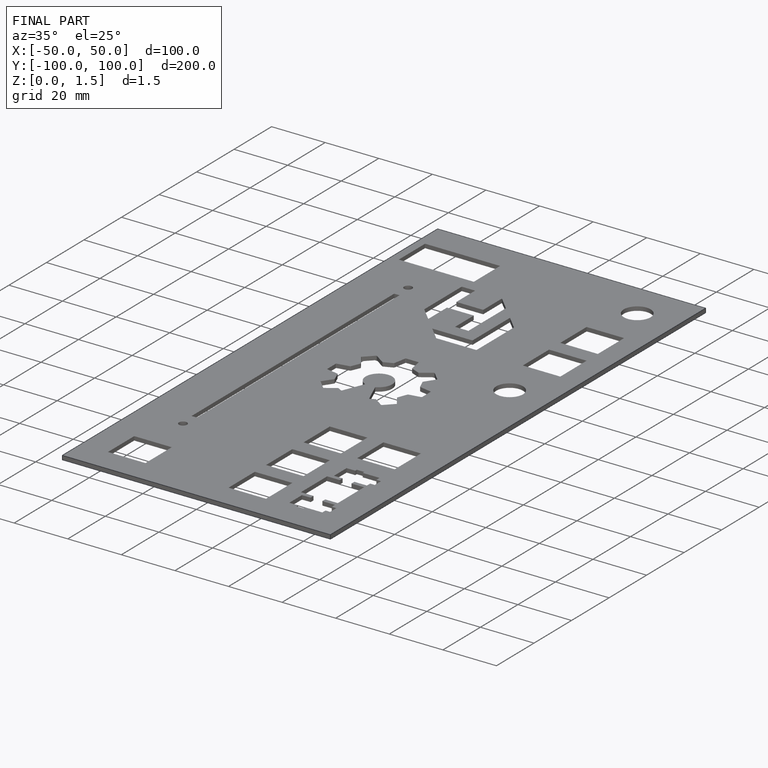
[diagram: finished part — iso view with bounding-box wireframe]
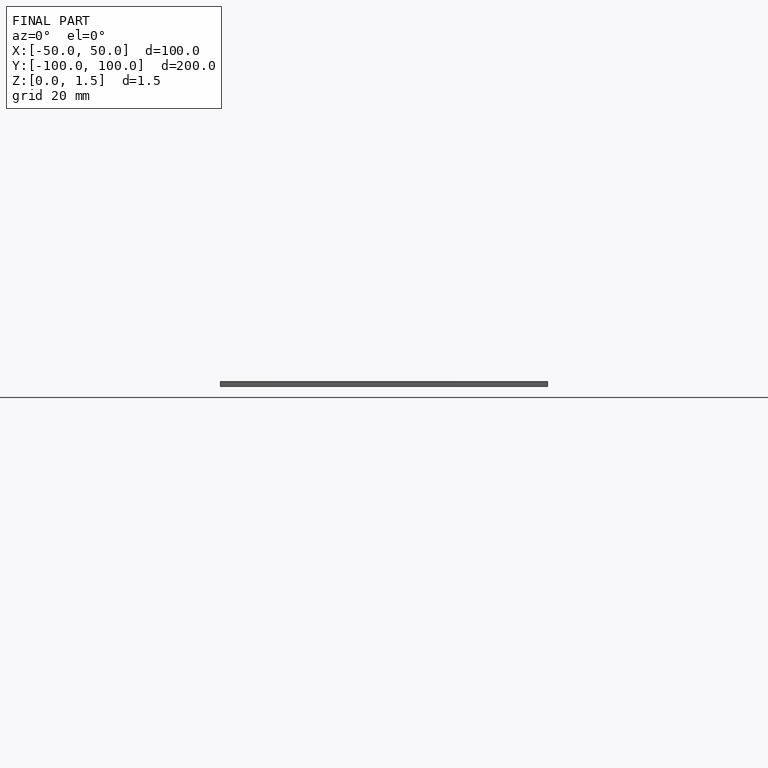
[diagram: finished part — front view with bounding-box wireframe]
